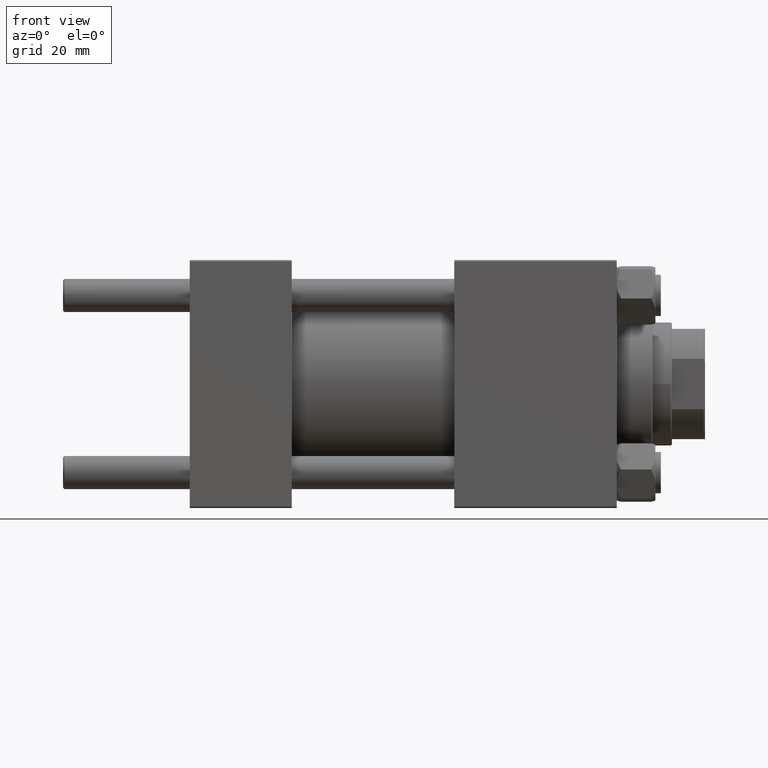
[diagram: clean part render]
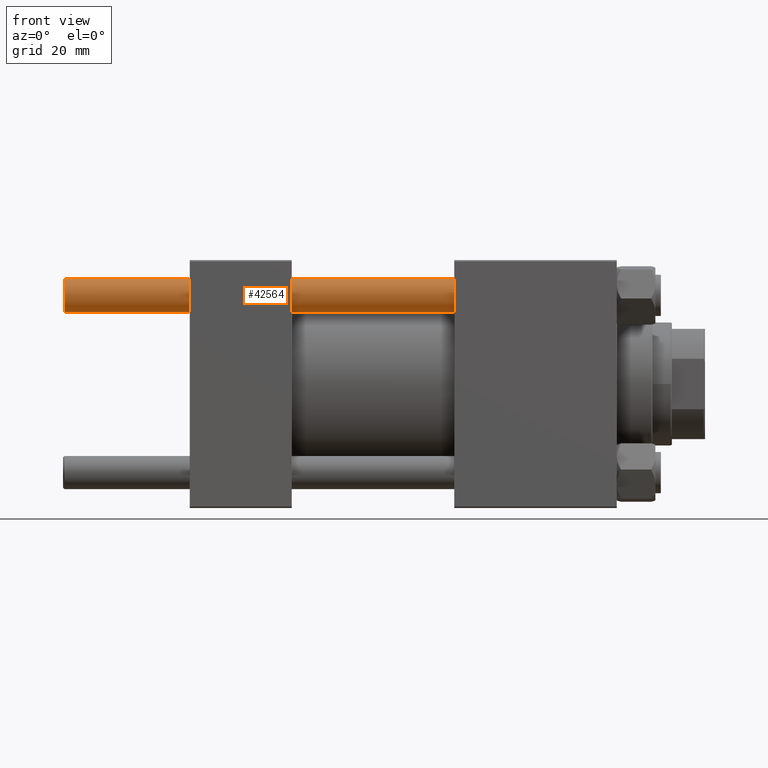
[diagram: same view with one face highlighted and labeled with its STEP entity id]
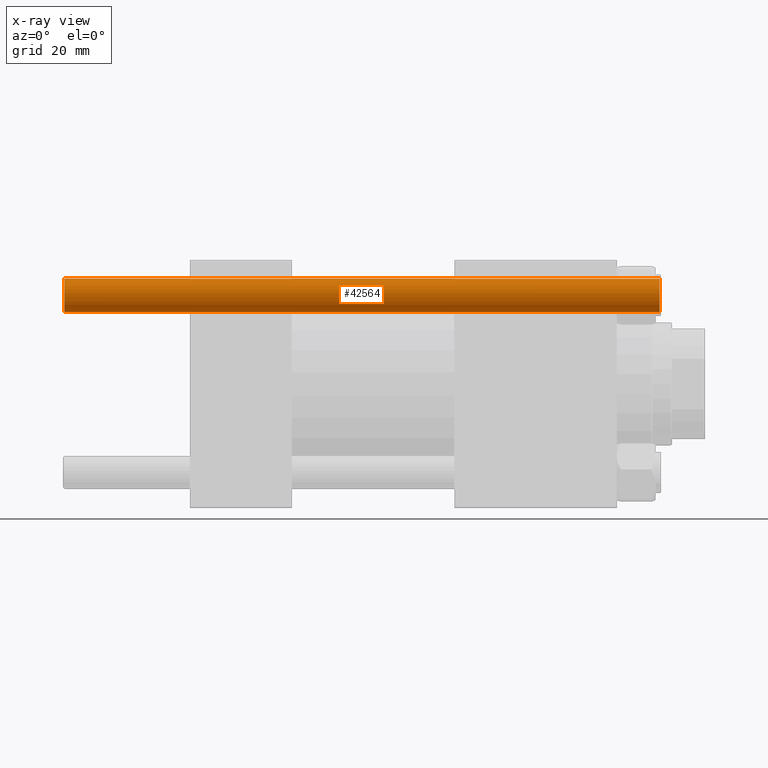
[diagram: x-ray of the same camera — body ghosted, the highlighted face saturated]
A machine part, front view. The second image highlights one B-rep face of the part: STEP entity #42564.
The next image is the same camera in x-ray: the body ghosted, the highlighted face saturated — about 0% of this face is hidden behind the body in this view.
In plain terms, the highlighted cylindrical surface (edge-blend (fillet) strip) has radius 6 mm, axis along (1, -0, 0).
Its self-contained STEP definition (entity closure, byte-faithful):
#2911 = CYLINDRICAL_SURFACE ( 'NONE', #22196, 6.000000000000000888 ) ;
#3015 = ORIENTED_EDGE ( 'NONE', *, *, #38930, .F. ) ;
#3163 = FACE_OUTER_BOUND ( 'NONE', #11643, .T. ) ;
#3254 = VERTEX_POINT ( 'NONE', #17007 ) ;
#4109 = AXIS2_PLACEMENT_3D ( 'NONE', #17465, #16966, #32328 ) ;
#5721 = EDGE_CURVE ( 'NONE', #35648, #3254, #36293, .T. ) ;
#6182 = CIRCLE ( 'NONE', #7819, 6.000000000000000888 ) ;
#6333 = ORIENTED_EDGE ( 'NONE', *, *, #5721, .T. ) ;
#7819 = AXIS2_PLACEMENT_3D ( 'NONE', #47247, #9197, #43954 ) ;
#9197 = DIRECTION ( 'NONE',  ( 0.000000000000000000, 0.000000000000000000, -1.000000000000000000 ) ) ;
#10484 = VERTEX_POINT ( 'NONE', #23360 ) ;
#11430 = DIRECTION ( 'NONE',  ( -0.000000000000000000, -0.000000000000000000, -1.000000000000000000 ) ) ;
#11643 = EDGE_LOOP ( 'NONE', ( #32379, #25239, #6333, #3015 ) ) ;
#16966 = DIRECTION ( 'NONE',  ( -0.000000000000000000, -0.000000000000000000, 1.000000000000000000 ) ) ;
#17007 = CARTESIAN_POINT ( 'NONE',  ( -6.000000000000000888, 0.000000000000000000, 0.4999999999999449329 ) ) ;
#17278 = CARTESIAN_POINT ( 'NONE',  ( 6.000000000000000888, 7.347880794884120722E-16, 216.4999999999999716 ) ) ;
#17465 = CARTESIAN_POINT ( 'NONE',  ( 0.000000000000000000, 0.000000000000000000, 0.4999999999999449329 ) ) ;
#21826 = CARTESIAN_POINT ( 'NONE',  ( 0.000000000000000000, 0.000000000000000000, 217.0000000000000000 ) ) ;
#22196 = AXIS2_PLACEMENT_3D ( 'NONE', #21826, #49299, #22329 ) ;
#22329 = DIRECTION ( 'NONE',  ( -1.000000000000000000, 0.000000000000000000, 0.000000000000000000 ) ) ;
#22358 = EDGE_CURVE ( 'NONE', #40562, #35648, #41676, .T. ) ;
#23360 = CARTESIAN_POINT ( 'NONE',  ( -6.000000000000000888, 0.000000000000000000, 216.4999999999999716 ) ) ;
#24815 = LINE ( 'NONE', #27861, #27932 ) ;
#25239 = ORIENTED_EDGE ( 'NONE', *, *, #22358, .T. ) ;
#26723 = VECTOR ( 'NONE', #11430, 1000.000000000000000 ) ;
#27861 = CARTESIAN_POINT ( 'NONE',  ( -6.000000000000000888, 0.000000000000000000, 217.0000000000000000 ) ) ;
#27932 = VECTOR ( 'NONE', #35903, 1000.000000000000000 ) ;
#32328 = DIRECTION ( 'NONE',  ( 1.000000000000000000, 0.000000000000000000, 0.000000000000000000 ) ) ;
#32379 = ORIENTED_EDGE ( 'NONE', *, *, #46150, .T. ) ;
#35648 = VERTEX_POINT ( 'NONE', #49725 ) ;
#35903 = DIRECTION ( 'NONE',  ( -0.000000000000000000, -0.000000000000000000, -1.000000000000000000 ) ) ;
#36293 = CIRCLE ( 'NONE', #4109, 6.000000000000000888 ) ;
#38930 = EDGE_CURVE ( 'NONE', #10484, #3254, #24815, .T. ) ;
#40562 = VERTEX_POINT ( 'NONE', #17278 ) ;
#41676 = LINE ( 'NONE', #46188, #26723 ) ;
#42564 = ADVANCED_FACE ( 'NONE', ( #3163 ), #2911, .T. ) ;
#43954 = DIRECTION ( 'NONE',  ( 1.000000000000000000, 0.000000000000000000, 0.000000000000000000 ) ) ;
#46150 = EDGE_CURVE ( 'NONE', #10484, #40562, #6182, .T. ) ;
#46188 = CARTESIAN_POINT ( 'NONE',  ( 6.000000000000000888, 7.347880794884120722E-16, 217.0000000000000000 ) ) ;
#47247 = CARTESIAN_POINT ( 'NONE',  ( 0.000000000000000000, 0.000000000000000000, 216.4999999999999716 ) ) ;
#49299 = DIRECTION ( 'NONE',  ( -0.000000000000000000, -0.000000000000000000, -1.000000000000000000 ) ) ;
#49725 = CARTESIAN_POINT ( 'NONE',  ( 6.000000000000000888, 7.347880794884120722E-16, 0.4999999999999449329 ) ) ;